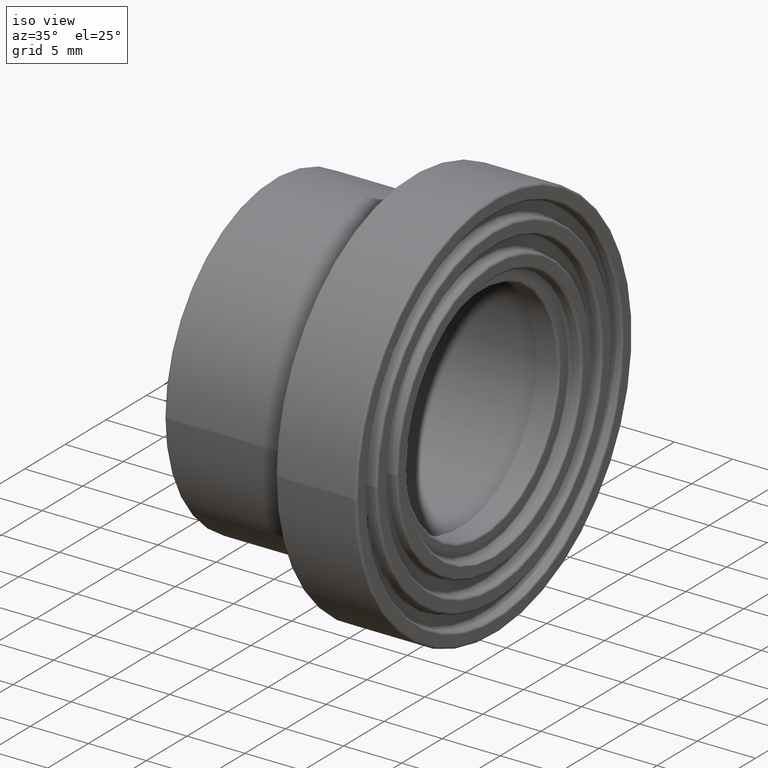
[diagram: clean part render]
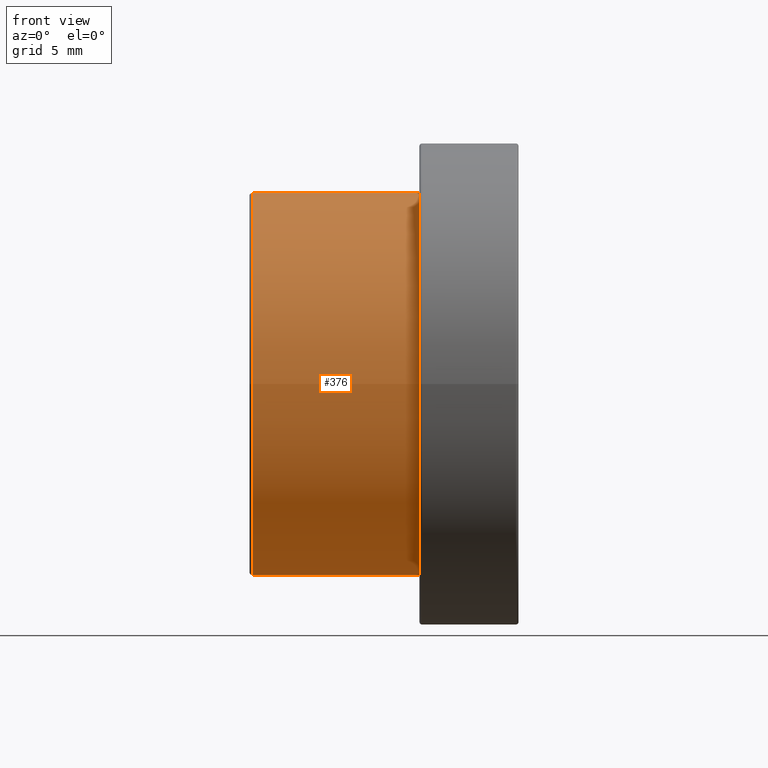
[diagram: tour spotlight — one face highlighted and labeled with its STEP entity id]
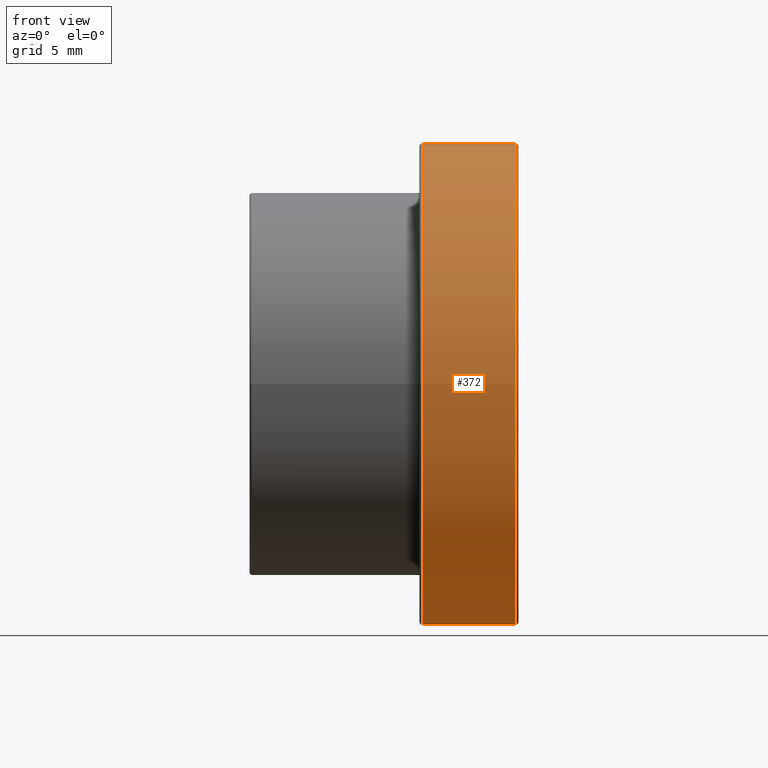
[diagram: tour spotlight — one face highlighted and labeled with its STEP entity id]
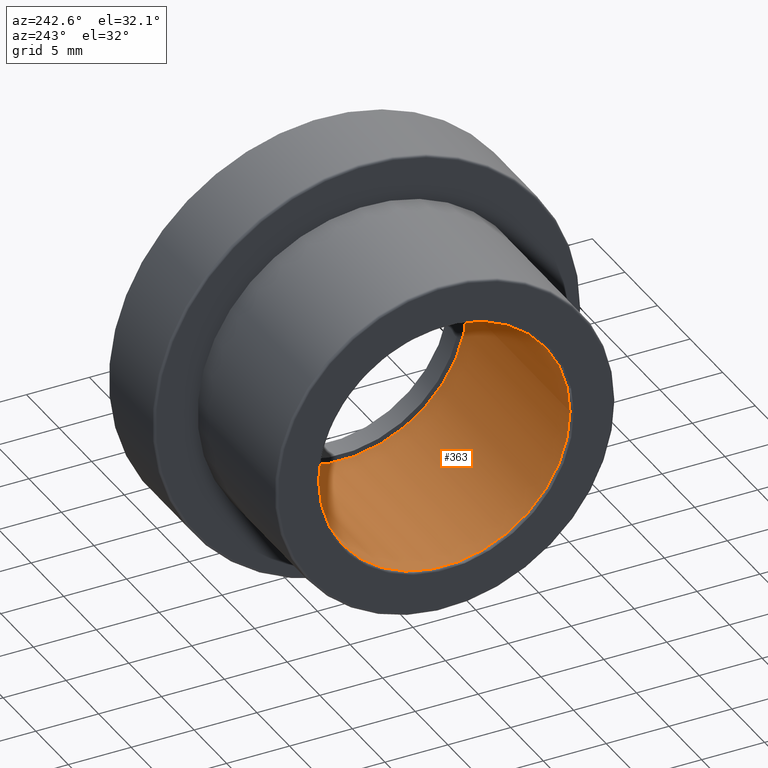
[diagram: tour spotlight — one face highlighted and labeled with its STEP entity id]
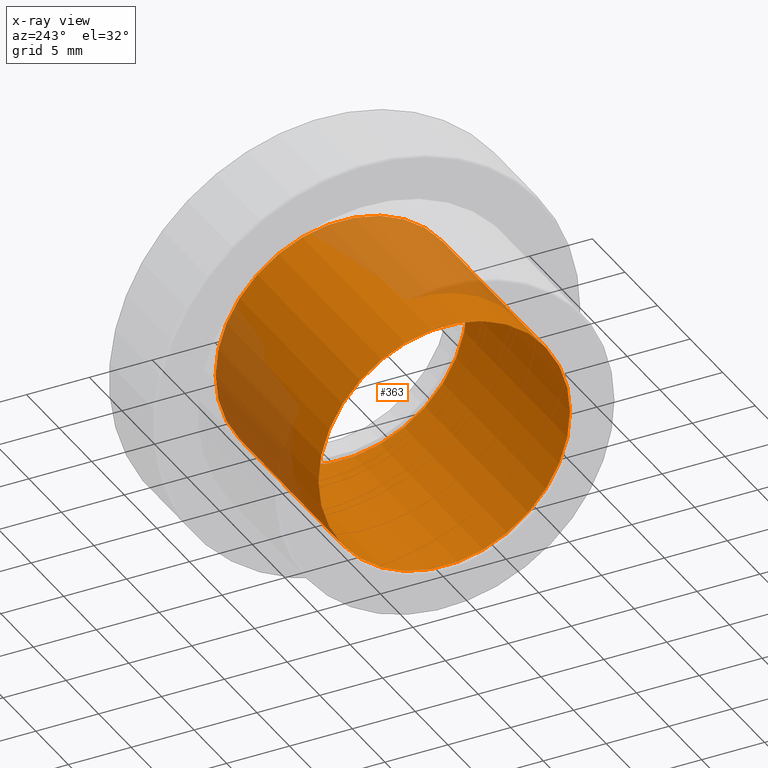
[diagram: x-ray of the same camera — body ghosted, this tour face saturated]
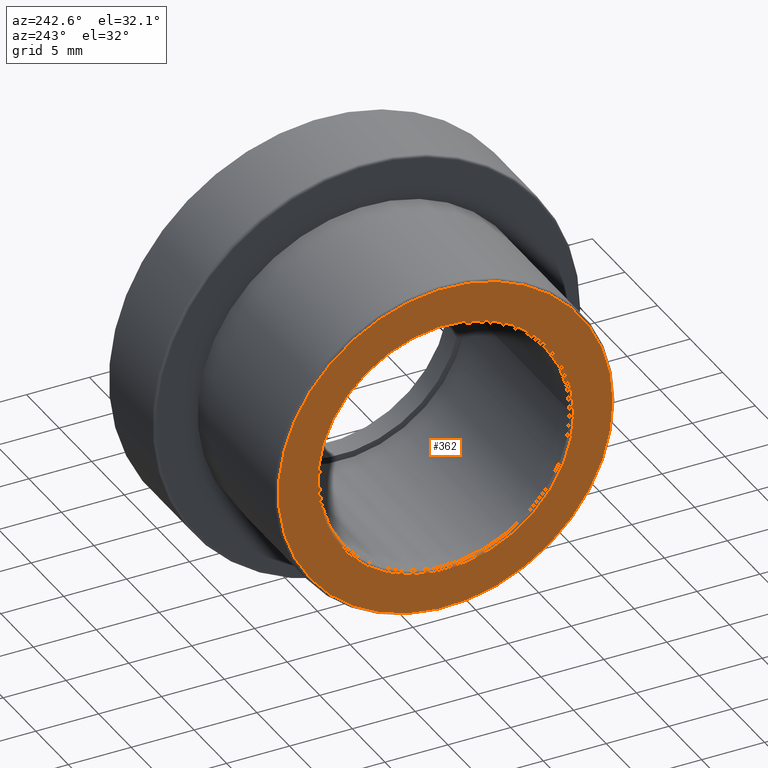
[diagram: tour spotlight — one face highlighted and labeled with its STEP entity id]
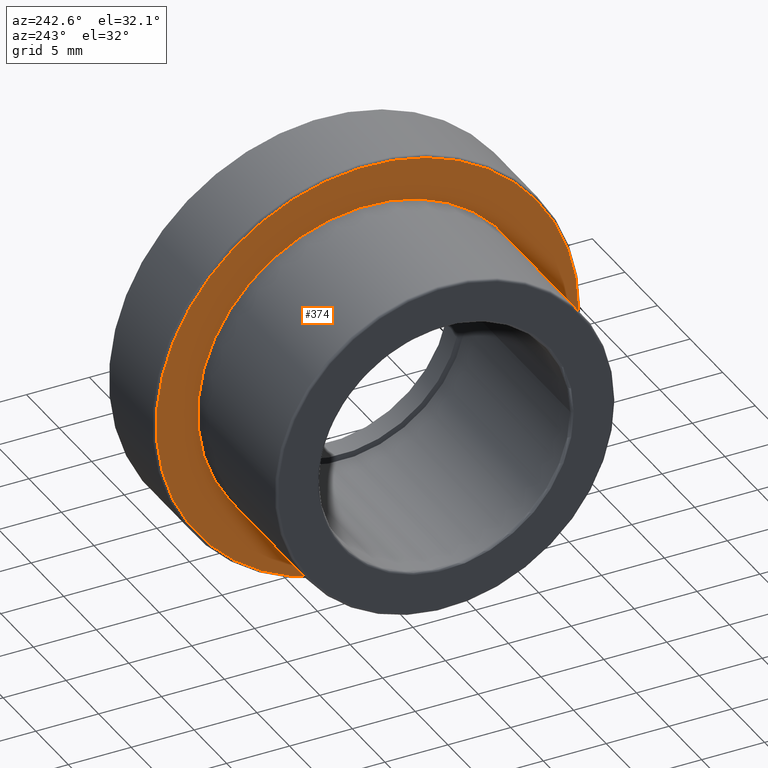
[diagram: tour spotlight — one face highlighted and labeled with its STEP entity id]
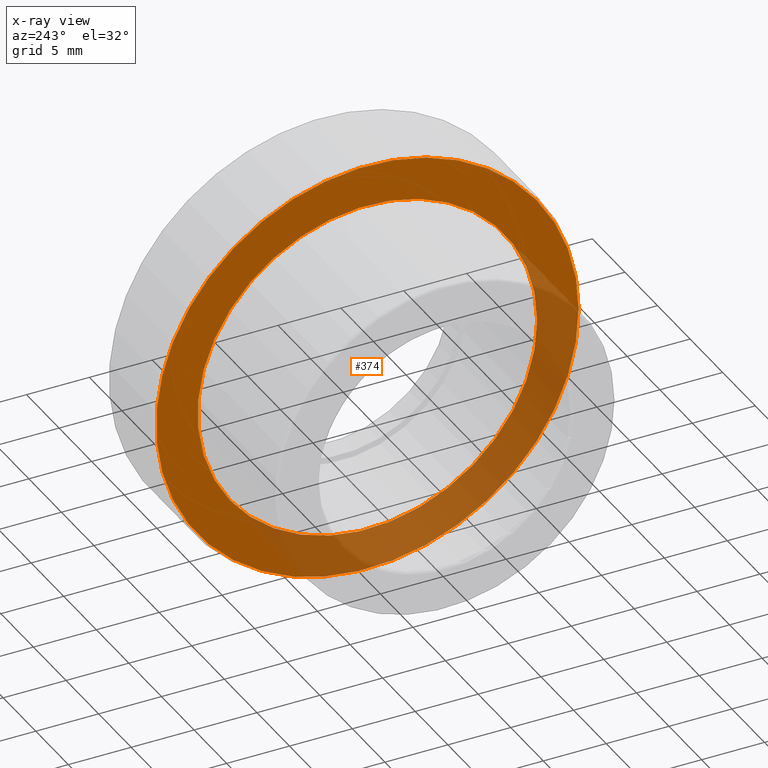
[diagram: x-ray of the same camera — body ghosted, this tour face saturated]
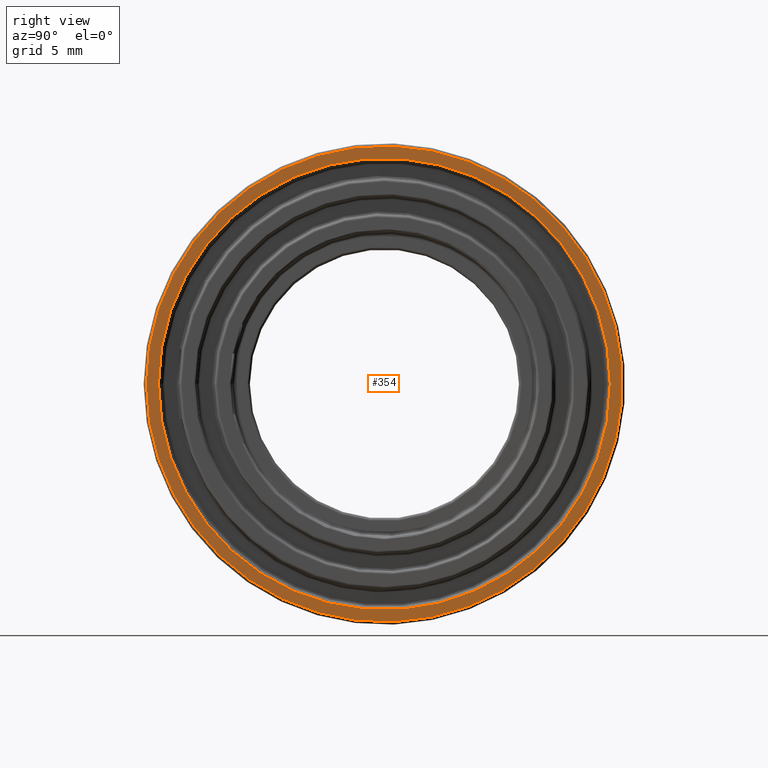
[diagram: tour spotlight — one face highlighted and labeled with its STEP entity id]
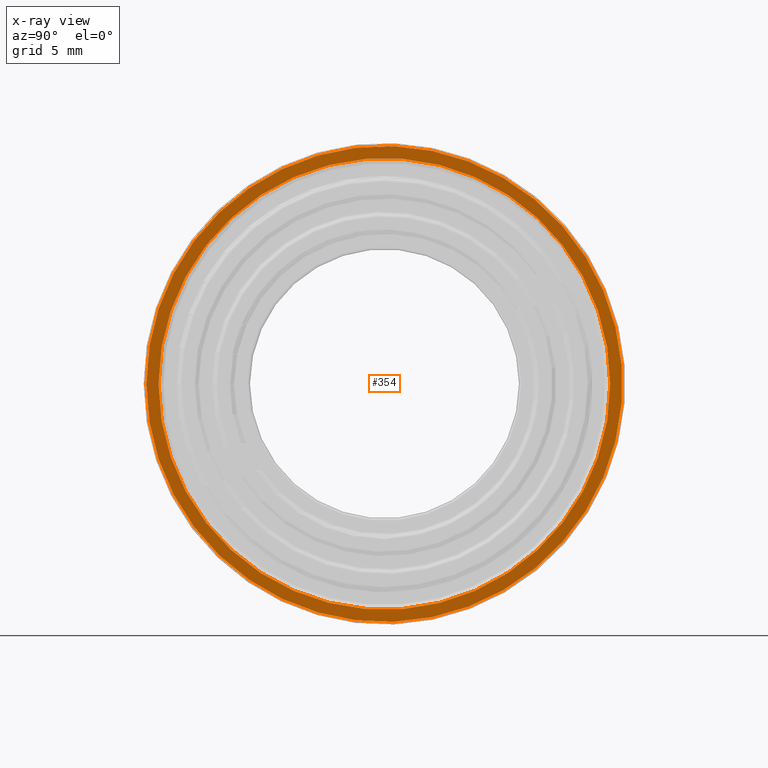
[diagram: x-ray of the same camera — body ghosted, this tour face saturated]
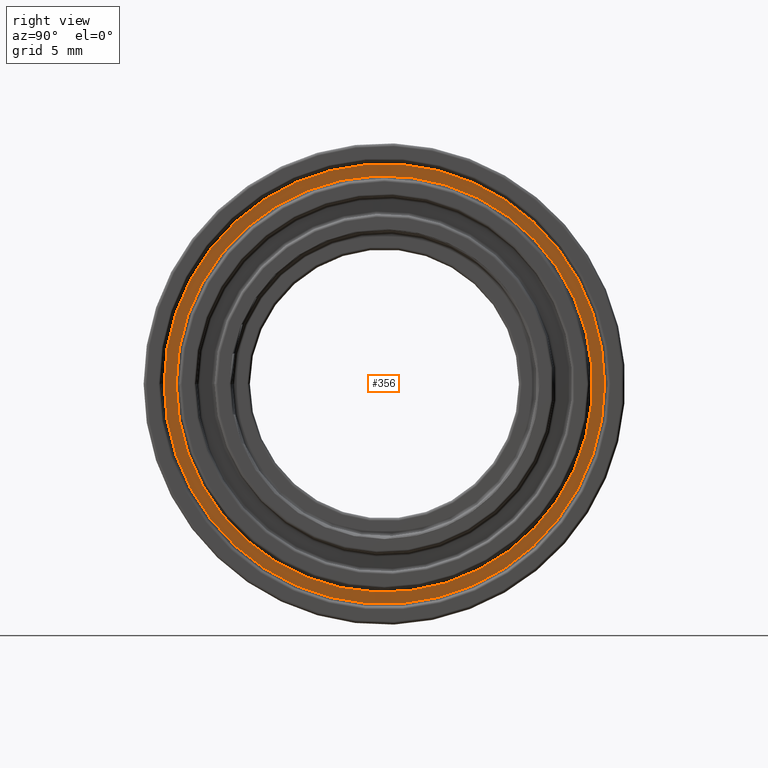
[diagram: tour spotlight — one face highlighted and labeled with its STEP entity id]
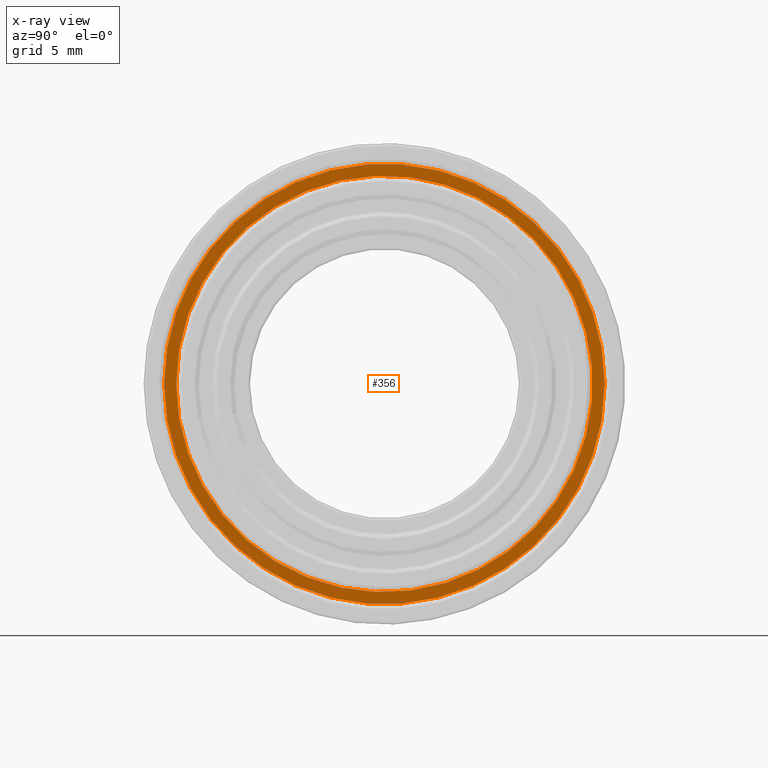
[diagram: x-ray of the same camera — body ghosted, this tour face saturated]
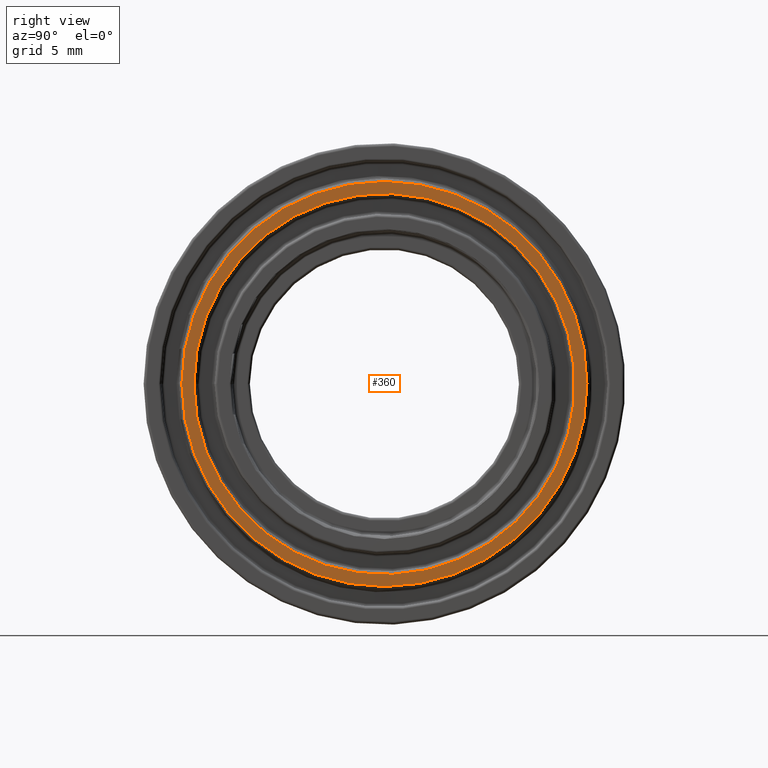
[diagram: tour spotlight — one face highlighted and labeled with its STEP entity id]
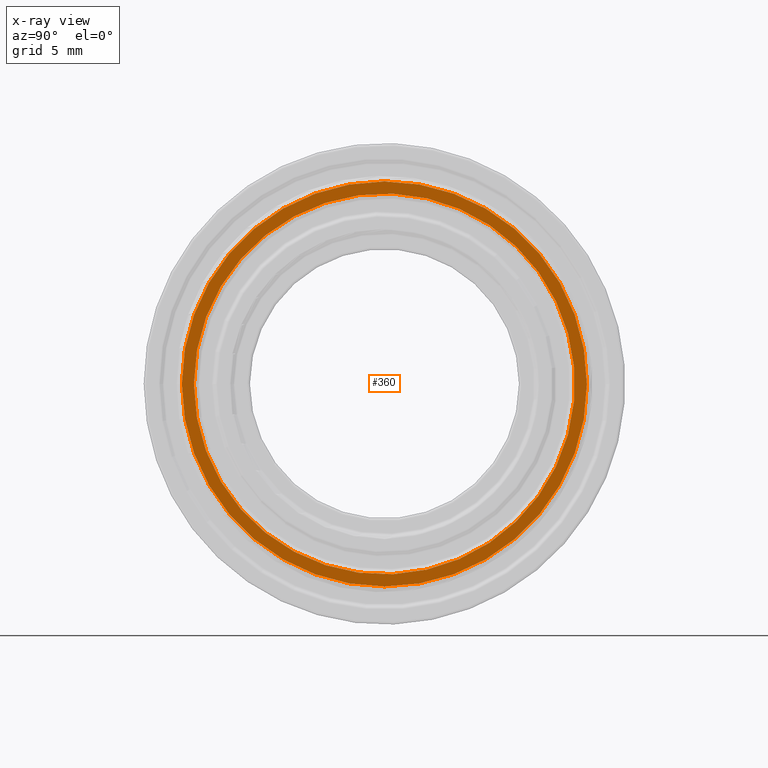
[diagram: x-ray of the same camera — body ghosted, this tour face saturated]
A machine part: a face-by-face anatomy tour. The part has 33 B-rep faces; the first image is the clean iso view, then the 8 largest visible faces are spotlighted one at a time (largest first), each with its STEP entity span.

Face 1 — front view, entity #376. In plain terms, the highlighted cylindrical surface (bore or boss wall) has radius 13.5 mm, axis along (-1, 0, 0).
Definition (entity closure, byte-faithful):
#23=CYLINDRICAL_SURFACE('',#444,13.5);
#64=FACE_BOUND('',#162,.T.);
#97=FACE_OUTER_BOUND('',#161,.T.);
#161=EDGE_LOOP('',(#326));
#162=EDGE_LOOP('',(#327));
#196=CIRCLE('',#441,13.5);
#197=CIRCLE('',#443,13.5);
#229=VERTEX_POINT('',#673);
#230=VERTEX_POINT('',#676);
#262=EDGE_CURVE('',#229,#229,#196,.T.);
#263=EDGE_CURVE('',#230,#230,#197,.T.);
#326=ORIENTED_EDGE('',*,*,#262,.T.);
#327=ORIENTED_EDGE('',*,*,#263,.F.);
#376=ADVANCED_FACE('',(#97,#64),#23,.T.);
#441=AXIS2_PLACEMENT_3D('',#674,#570,#571);
#443=AXIS2_PLACEMENT_3D('',#677,#574,#575);
#444=AXIS2_PLACEMENT_3D('',#678,#576,#577);
#570=DIRECTION('center_axis',(-1.,0.,0.));
#571=DIRECTION('ref_axis',(0.,0.,1.));
#574=DIRECTION('center_axis',(-1.,0.,0.));
#575=DIRECTION('ref_axis',(0.,1.,6.12323399573677E-17));
#576=DIRECTION('center_axis',(-1.,0.,0.));
#577=DIRECTION('ref_axis',(0.,-1.,0.));
#673=CARTESIAN_POINT('',(12.,-13.5,0.));
#674=CARTESIAN_POINT('Origin',(12.,0.,0.));
#676=CARTESIAN_POINT('',(0.2,-13.5,8.26636589424463E-16));
#677=CARTESIAN_POINT('Origin',(0.2,0.,0.));
#678=CARTESIAN_POINT('Origin',(6.,0.,0.));

Face 2 — front view, entity #372. In plain terms, the highlighted cylindrical surface (bore or boss wall) has radius 17 mm, axis along (-1, 0, 0).
Definition (entity closure, byte-faithful):
#22=CYLINDRICAL_SURFACE('',#436,17.);
#60=FACE_BOUND('',#154,.T.);
#93=FACE_OUTER_BOUND('',#153,.T.);
#153=EDGE_LOOP('',(#318));
#154=EDGE_LOOP('',(#319));
#193=CIRCLE('',#435,17.);
#194=CIRCLE('',#437,17.);
#226=VERTEX_POINT('',#664);
#227=VERTEX_POINT('',#667);
#259=EDGE_CURVE('',#226,#226,#193,.T.);
#260=EDGE_CURVE('',#227,#227,#194,.T.);
#318=ORIENTED_EDGE('',*,*,#260,.F.);
#319=ORIENTED_EDGE('',*,*,#259,.F.);
#372=ADVANCED_FACE('',(#93,#60),#22,.T.);
#435=AXIS2_PLACEMENT_3D('',#665,#558,#559);
#436=AXIS2_PLACEMENT_3D('',#666,#560,#561);
#437=AXIS2_PLACEMENT_3D('',#668,#562,#563);
#558=DIRECTION('center_axis',(1.,0.,0.));
#559=DIRECTION('ref_axis',(0.,1.,6.12323399573677E-17));
#560=DIRECTION('center_axis',(-1.,0.,0.));
#561=DIRECTION('ref_axis',(0.,-1.,0.));
#562=DIRECTION('center_axis',(-1.,0.,0.));
#563=DIRECTION('ref_axis',(0.,1.,6.12323399573677E-17));
#664=CARTESIAN_POINT('',(18.8,-17.,-3.12284933782575E-15));
#665=CARTESIAN_POINT('Origin',(18.8,0.,0.));
#666=CARTESIAN_POINT('Origin',(15.5,0.,0.));
#667=CARTESIAN_POINT('',(12.2,-17.,1.04094977927525E-15));
#668=CARTESIAN_POINT('Origin',(12.2,0.,0.));

Face 3 — auxiliary view, entity #363. An x-ray twin of the same camera follows (body ghosted, this face saturated) — the face is partly hidden behind the body. In plain terms, the highlighted cylindrical surface (bore or boss wall) has radius 10 mm, axis along (-1, 0, 0).
Definition (entity closure, byte-faithful):
#19=CYLINDRICAL_SURFACE('',#419,10.);
#51=FACE_BOUND('',#136,.T.);
#84=FACE_OUTER_BOUND('',#135,.T.);
#135=EDGE_LOOP('',(#300));
#136=EDGE_LOOP('',(#301));
#184=CIRCLE('',#416,10.);
#186=CIRCLE('',#420,10.);
#217=VERTEX_POINT('',#636);
#219=VERTEX_POINT('',#642);
#250=EDGE_CURVE('',#217,#217,#184,.T.);
#252=EDGE_CURVE('',#219,#219,#186,.T.);
#300=ORIENTED_EDGE('',*,*,#252,.F.);
#301=ORIENTED_EDGE('',*,*,#250,.F.);
#363=ADVANCED_FACE('',(#84,#51),#19,.F.);
#416=AXIS2_PLACEMENT_3D('',#637,#520,#521);
#419=AXIS2_PLACEMENT_3D('',#641,#526,#527);
#420=AXIS2_PLACEMENT_3D('',#643,#528,#529);
#520=DIRECTION('center_axis',(1.,0.,0.));
#521=DIRECTION('ref_axis',(0.,1.,6.12323399573677E-17));
#526=DIRECTION('center_axis',(-1.,0.,0.));
#527=DIRECTION('ref_axis',(0.,-1.,0.));
#528=DIRECTION('center_axis',(-1.,0.,0.));
#529=DIRECTION('ref_axis',(0.,0.,1.));
#636=CARTESIAN_POINT('',(0.2,-10.,-1.83697019872103E-15));
#637=CARTESIAN_POINT('Origin',(0.2,0.,0.));
#641=CARTESIAN_POINT('Origin',(8.,0.,0.));
#642=CARTESIAN_POINT('',(16.,-10.,0.));
#643=CARTESIAN_POINT('Origin',(16.,0.,0.));

Face 4 — auxiliary view, entity #362. In plain terms, the highlighted planar face has unit normal (-1, 0, 0).
Definition (entity closure, byte-faithful):
#29=PLANE('',#417);
#50=FACE_BOUND('',#134,.T.);
#83=FACE_OUTER_BOUND('',#133,.T.);
#133=EDGE_LOOP('',(#298));
#134=EDGE_LOOP('',(#299));
#183=CIRCLE('',#415,10.2);
#185=CIRCLE('',#418,13.3);
#216=VERTEX_POINT('',#634);
#218=VERTEX_POINT('',#639);
#249=EDGE_CURVE('',#216,#216,#183,.T.);
#251=EDGE_CURVE('',#218,#218,#185,.T.);
#298=ORIENTED_EDGE('',*,*,#251,.F.);
#299=ORIENTED_EDGE('',*,*,#249,.F.);
#362=ADVANCED_FACE('',(#83,#50),#29,.T.);
#415=AXIS2_PLACEMENT_3D('',#635,#518,#519);
#417=AXIS2_PLACEMENT_3D('',#638,#522,#523);
#418=AXIS2_PLACEMENT_3D('',#640,#524,#525);
#518=DIRECTION('center_axis',(-1.,0.,0.));
#519=DIRECTION('ref_axis',(0.,1.,6.12323399573677E-17));
#522=DIRECTION('center_axis',(-1.,0.,0.));
#523=DIRECTION('ref_axis',(0.,0.,1.));
#524=DIRECTION('center_axis',(1.,0.,0.));
#525=DIRECTION('ref_axis',(0.,1.,6.12323399573677E-17));
#634=CARTESIAN_POINT('',(0.,-10.2,6.2456986756515E-16));
#635=CARTESIAN_POINT('Origin',(0.,0.,0.));
#638=CARTESIAN_POINT('Origin',(0.,-10.,0.));
#639=CARTESIAN_POINT('',(0.,-13.3,-2.44317036429897E-15));
#640=CARTESIAN_POINT('Origin',(0.,0.,0.));

Face 5 — auxiliary view, entity #374. An x-ray twin of the same camera follows (body ghosted, this face saturated) — the face is partly hidden behind the body. In plain terms, the highlighted planar face has unit normal (-1, 0, 0).
Definition (entity closure, byte-faithful):
#31=PLANE('',#440);
#62=FACE_BOUND('',#158,.T.);
#95=FACE_OUTER_BOUND('',#157,.T.);
#157=EDGE_LOOP('',(#322));
#158=EDGE_LOOP('',(#323));
#195=CIRCLE('',#439,16.8);
#196=CIRCLE('',#441,13.5);
#228=VERTEX_POINT('',#670);
#229=VERTEX_POINT('',#673);
#261=EDGE_CURVE('',#228,#228,#195,.T.);
#262=EDGE_CURVE('',#229,#229,#196,.T.);
#322=ORIENTED_EDGE('',*,*,#261,.F.);
#323=ORIENTED_EDGE('',*,*,#262,.F.);
#374=ADVANCED_FACE('',(#95,#62),#31,.T.);
#439=AXIS2_PLACEMENT_3D('',#671,#566,#567);
#440=AXIS2_PLACEMENT_3D('',#672,#568,#569);
#441=AXIS2_PLACEMENT_3D('',#674,#570,#571);
#566=DIRECTION('center_axis',(1.,0.,0.));
#567=DIRECTION('ref_axis',(0.,1.,6.12323399573677E-17));
#568=DIRECTION('center_axis',(-1.,0.,0.));
#569=DIRECTION('ref_axis',(0.,0.,1.));
#570=DIRECTION('center_axis',(-1.,0.,0.));
#571=DIRECTION('ref_axis',(0.,0.,1.));
#670=CARTESIAN_POINT('',(12.,-16.8,-3.08610993385133E-15));
#671=CARTESIAN_POINT('Origin',(12.,0.,0.));
#672=CARTESIAN_POINT('Origin',(12.,-13.5,0.));
#673=CARTESIAN_POINT('',(12.,-13.5,0.));
#674=CARTESIAN_POINT('Origin',(12.,0.,0.));

Face 6 — right view, entity #354. An x-ray twin of the same camera follows (body ghosted, this face saturated) — the face is partly hidden behind the body. In plain terms, the highlighted planar face has unit normal (1, 0, 0).
Definition (entity closure, byte-faithful):
#26=PLANE('',#400);
#42=FACE_BOUND('',#118,.T.);
#75=FACE_OUTER_BOUND('',#117,.T.);
#117=EDGE_LOOP('',(#282));
#118=EDGE_LOOP('',(#283));
#174=CIRCLE('',#397,15.95);
#176=CIRCLE('',#401,16.8);
#207=VERTEX_POINT('',#607);
#209=VERTEX_POINT('',#613);
#240=EDGE_CURVE('',#207,#207,#174,.T.);
#242=EDGE_CURVE('',#209,#209,#176,.T.);
#282=ORIENTED_EDGE('',*,*,#242,.F.);
#283=ORIENTED_EDGE('',*,*,#240,.F.);
#354=ADVANCED_FACE('',(#75,#42),#26,.T.);
#397=AXIS2_PLACEMENT_3D('',#608,#482,#483);
#400=AXIS2_PLACEMENT_3D('',#612,#488,#489);
#401=AXIS2_PLACEMENT_3D('',#614,#490,#491);
#482=DIRECTION('center_axis',(1.,0.,0.));
#483=DIRECTION('ref_axis',(0.,1.,6.12323399573677E-17));
#488=DIRECTION('center_axis',(1.,0.,0.));
#489=DIRECTION('ref_axis',(0.,0.,-1.));
#490=DIRECTION('center_axis',(-1.,0.,0.));
#491=DIRECTION('ref_axis',(0.,1.,6.12323399573677E-17));
#607=CARTESIAN_POINT('',(19.,-15.95,-2.92996746696004E-15));
#608=CARTESIAN_POINT('Origin',(19.,0.,0.));
#612=CARTESIAN_POINT('Origin',(19.,-17.,0.));
#613=CARTESIAN_POINT('',(19.,-16.8,1.02870331128378E-15));
#614=CARTESIAN_POINT('Origin',(19.,0.,0.));

Face 7 — right view, entity #356. An x-ray twin of the same camera follows (body ghosted, this face saturated) — the face is partly hidden behind the body. In plain terms, the highlighted planar face has unit normal (1, 0, 0).
Definition (entity closure, byte-faithful):
#27=PLANE('',#404);
#44=FACE_BOUND('',#122,.T.);
#77=FACE_OUTER_BOUND('',#121,.T.);
#121=EDGE_LOOP('',(#286));
#122=EDGE_LOOP('',(#287));
#177=CIRCLE('',#403,15.55);
#178=CIRCLE('',#405,14.7);
#210=VERTEX_POINT('',#616);
#211=VERTEX_POINT('',#619);
#243=EDGE_CURVE('',#210,#210,#177,.T.);
#244=EDGE_CURVE('',#211,#211,#178,.T.);
#286=ORIENTED_EDGE('',*,*,#243,.F.);
#287=ORIENTED_EDGE('',*,*,#244,.F.);
#356=ADVANCED_FACE('',(#77,#44),#27,.T.);
#403=AXIS2_PLACEMENT_3D('',#617,#494,#495);
#404=AXIS2_PLACEMENT_3D('',#618,#496,#497);
#405=AXIS2_PLACEMENT_3D('',#620,#498,#499);
#494=DIRECTION('center_axis',(-1.,0.,0.));
#495=DIRECTION('ref_axis',(0.,1.,6.12323399573677E-17));
#496=DIRECTION('center_axis',(1.,0.,0.));
#497=DIRECTION('ref_axis',(0.,0.,-1.));
#498=DIRECTION('center_axis',(1.,0.,0.));
#499=DIRECTION('ref_axis',(0.,1.,6.12323399573677E-17));
#616=CARTESIAN_POINT('',(17.95,-15.55,9.52162886337067E-16));
#617=CARTESIAN_POINT('Origin',(17.95,0.,0.));
#618=CARTESIAN_POINT('Origin',(17.95,-15.75,0.));
#619=CARTESIAN_POINT('',(17.95,-14.7,-2.70034619211991E-15));
#620=CARTESIAN_POINT('Origin',(17.95,0.,0.));

Face 8 — right view, entity #360. An x-ray twin of the same camera follows (body ghosted, this face saturated) — the face is partly hidden behind the body. In plain terms, the highlighted planar face has unit normal (1, 0, 0).
Definition (entity closure, byte-faithful):
#28=PLANE('',#412);
#48=FACE_BOUND('',#130,.T.);
#81=FACE_OUTER_BOUND('',#129,.T.);
#129=EDGE_LOOP('',(#294));
#130=EDGE_LOOP('',(#295));
#181=CIRCLE('',#411,14.3);
#182=CIRCLE('',#413,13.45);
#214=VERTEX_POINT('',#628);
#215=VERTEX_POINT('',#631);
#247=EDGE_CURVE('',#214,#214,#181,.T.);
#248=EDGE_CURVE('',#215,#215,#182,.T.);
#294=ORIENTED_EDGE('',*,*,#247,.F.);
#295=ORIENTED_EDGE('',*,*,#248,.F.);
#360=ADVANCED_FACE('',(#81,#48),#28,.T.);
#411=AXIS2_PLACEMENT_3D('',#629,#510,#511);
#412=AXIS2_PLACEMENT_3D('',#630,#512,#513);
#413=AXIS2_PLACEMENT_3D('',#632,#514,#515);
#510=DIRECTION('center_axis',(-1.,0.,0.));
#511=DIRECTION('ref_axis',(0.,1.,6.12323399573676E-17));
#512=DIRECTION('center_axis',(1.,0.,0.));
#513=DIRECTION('ref_axis',(0.,0.,-1.));
#514=DIRECTION('center_axis',(1.,0.,0.));
#515=DIRECTION('ref_axis',(0.,1.,6.12323399573677E-17));
#628=CARTESIAN_POINT('',(19.,-14.3,8.75622461390357E-16));
#629=CARTESIAN_POINT('Origin',(19.,0.,0.));
#630=CARTESIAN_POINT('Origin',(19.,-14.5,0.));
#631=CARTESIAN_POINT('',(19.,-13.45,-2.47072491727978E-15));
#632=CARTESIAN_POINT('Origin',(19.,0.,0.));